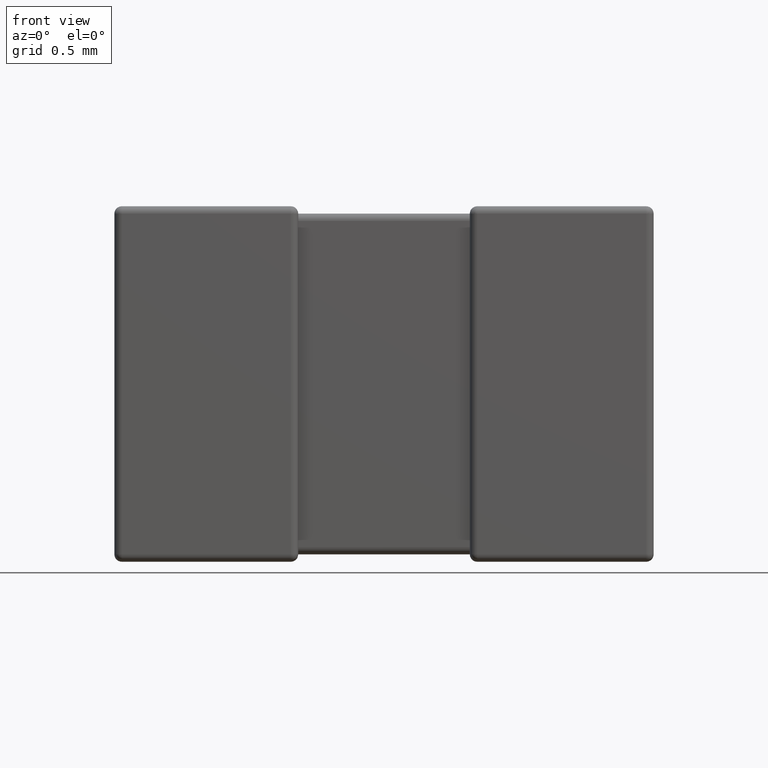
[diagram: clean part render]
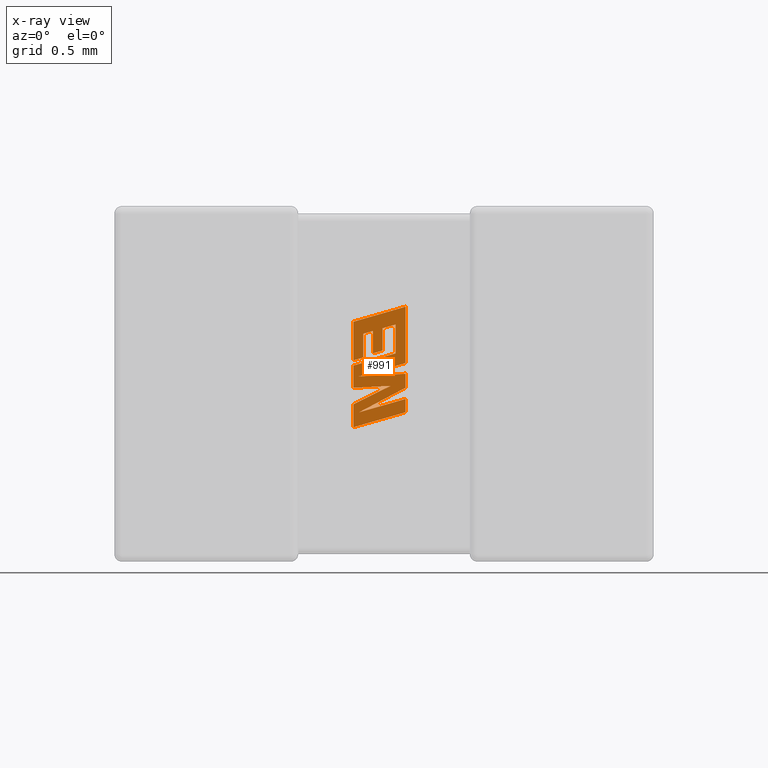
[diagram: x-ray — body ghosted, one internal face saturated and labeled with its STEP entity id]
A machine part, front view, then the same camera in x-ray: the body is ghosted and one INTERNAL B-rep face — a face not visible from any outside direction — is saturated and labeled: STEP entity #991.
In plain terms, the highlighted planar face has unit normal (0, -1, 0).
Its self-contained STEP definition (entity closure, byte-faithful):
#9 = DIRECTION ( 'NONE',  ( 0.000000000000000000, 0.000000000000000000, -1.000000000000000000 ) ) ;
#13 = DIRECTION ( 'NONE',  ( 0.000000000000000000, 0.000000000000000000, 1.000000000000000000 ) ) ;
#32 = CARTESIAN_POINT ( 'NONE',  ( 0.9973099854362785788, 1.369839999999999947, -0.8411322190964737322 ) ) ;
#51 = ORIENTED_EDGE ( 'NONE', *, *, #4365, .F. ) ;
#83 = LINE ( 'NONE', #2954, #1791 ) ;
#92 = CARTESIAN_POINT ( 'NONE',  ( 1.055057873940854041, 1.369839999999999947, -0.6002718793269788966 ) ) ;
#135 = VECTOR ( 'NONE', #973, 1000.000000000000000 ) ;
#177 = VECTOR ( 'NONE', #419, 1000.000000000000114 ) ;
#277 = DIRECTION ( 'NONE',  ( 0.000000000000000000, 0.000000000000000000, -1.000000000000000000 ) ) ;
#281 = VERTEX_POINT ( 'NONE', #996 ) ;
#312 = EDGE_CURVE ( 'NONE', #4492, #4380, #3766, .T. ) ;
#313 = VERTEX_POINT ( 'NONE', #4442 ) ;
#317 = CARTESIAN_POINT ( 'NONE',  ( 1.188000000000003498, 1.369839999999999947, -0.8405411030607993217 ) ) ;
#398 = CARTESIAN_POINT ( 'NONE',  ( 1.094464961500362321, 1.369839999999999947, -0.4975356530611448891 ) ) ;
#419 = DIRECTION ( 'NONE',  ( -0.9617234872620624708, 0.000000000000000000, -0.2740217765953967821 ) ) ;
#429 = CARTESIAN_POINT ( 'NONE',  ( 1.094464961500362321, 1.369839999999999947, -0.5890160448136516624 ) ) ;
#439 = CARTESIAN_POINT ( 'NONE',  ( 0.9982238819384064987, 1.369839999999999947, -0.6942755326709606489 ) ) ;
#465 = CARTESIAN_POINT ( 'NONE',  ( 0.9748339648551366254, 1.369839999999999947, -0.4714805285893743925 ) ) ;
#484 = VERTEX_POINT ( 'NONE', #1542 ) ;
#487 = EDGE_CURVE ( 'NONE', #281, #967, #83, .T. ) ;
#488 = DIRECTION ( 'NONE',  ( -0.8843386665637650301, 0.000000000000000000, -0.4668459304955136502 ) ) ;
#492 = VECTOR ( 'NONE', #1183, 1000.000000000000114 ) ;
#494 = CARTESIAN_POINT ( 'NONE',  ( 1.147445032506710483, 1.369839999999999947, -0.6006076228641760162 ) ) ;
#519 = AXIS2_PLACEMENT_3D ( 'NONE', #3305, #3971, #3651 ) ;
#551 = ORIENTED_EDGE ( 'NONE', *, *, #608, .F. ) ;
#565 = LINE ( 'NONE', #2324, #2459 ) ;
#575 = VERTEX_POINT ( 'NONE', #494 ) ;
#608 = EDGE_CURVE ( 'NONE', #2564, #3423, #4318, .T. ) ;
#690 = VECTOR ( 'NONE', #1037, 1000.000000000000000 ) ;
#699 = LINE ( 'NONE', #2049, #1253 ) ;
#716 = LINE ( 'NONE', #2394, #3722 ) ;
#734 = VERTEX_POINT ( 'NONE', #2796 ) ;
#765 = LINE ( 'NONE', #1719, #1055 ) ;
#775 = VECTOR ( 'NONE', #3718, 1000.000000000000227 ) ;
#805 = CARTESIAN_POINT ( 'NONE',  ( 0.9748339648551366254, 1.369839999999999947, -0.8083347367239003267 ) ) ;
#808 = ORIENTED_EDGE ( 'NONE', *, *, #3633, .F. ) ;
#809 = EDGE_CURVE ( 'NONE', #2777, #3607, #1012, .T. ) ;
#826 = LINE ( 'NONE', #3225, #3759 ) ;
#931 = EDGE_CURVE ( 'NONE', #313, #4492, #2110, .T. ) ;
#967 = VERTEX_POINT ( 'NONE', #1776 ) ;
#973 = DIRECTION ( 'NONE',  ( 0.000000000000000000, 0.000000000000000000, 1.000000000000000000 ) ) ;
#974 = VERTEX_POINT ( 'NONE', #4232 ) ;
#991 = ADVANCED_FACE ( 'NONE', ( #1459 ), #2852, .T. ) ;
#996 = CARTESIAN_POINT ( 'NONE',  ( 0.9748339648551366254, 1.369839999999999947, -0.7410023534756597918 ) ) ;
#1012 = LINE ( 'NONE', #2416, #3086 ) ;
#1037 = DIRECTION ( 'NONE',  ( 0.000000000000000000, 0.000000000000000000, -1.000000000000000000 ) ) ;
#1040 = CARTESIAN_POINT ( 'NONE',  ( 1.188000000000003498, 1.369839999999999947, -0.7863723184474802341 ) ) ;
#1055 = VECTOR ( 'NONE', #277, 1000.000000000000000 ) ;
#1065 = CARTESIAN_POINT ( 'NONE',  ( 1.015409025108017671, 1.369839999999999947, -0.5203156576566413394 ) ) ;
#1069 = VECTOR ( 'NONE', #4192, 1000.000000000000114 ) ;
#1104 = DIRECTION ( 'NONE',  ( -0.9601763114327565019, 0.000000000000000000, -0.2793947940878393488 ) ) ;
#1108 = LINE ( 'NONE', #429, #4330 ) ;
#1165 = LINE ( 'NONE', #2568, #3739 ) ;
#1175 = DIRECTION ( 'NONE',  ( 0.9610029908221285888, 0.000000000000000000, 0.2765379750249931101 ) ) ;
#1183 = DIRECTION ( 'NONE',  ( -0.9985542843760948362, 0.000000000000000000, -0.05375259206908060416 ) ) ;
#1253 = VECTOR ( 'NONE', #2830, 1000.000000000000000 ) ;
#1311 = EDGE_CURVE ( 'NONE', #2258, #484, #3582, .T. ) ;
#1313 = CARTESIAN_POINT ( 'NONE',  ( 1.015409025108017671, 1.369839999999999947, -0.6174362815830839457 ) ) ;
#1459 = FACE_OUTER_BOUND ( 'NONE', #1751, .T. ) ;
#1464 = CARTESIAN_POINT ( 'NONE',  ( 1.055057873940854041, 1.369839999999999947, -0.5087785245035225667 ) ) ;
#1495 = VECTOR ( 'NONE', #1538, 1000.000000000000000 ) ;
#1527 = EDGE_CURVE ( 'NONE', #2586, #3308, #1661, .T. ) ;
#1538 = DIRECTION ( 'NONE',  ( 0.000000000000000000, 0.000000000000000000, -1.000000000000000000 ) ) ;
#1542 = CARTESIAN_POINT ( 'NONE',  ( 1.094464961500362321, 1.369839999999999947, -0.5890160448136516624 ) ) ;
#1661 = LINE ( 'NONE', #1313, #3465 ) ;
#1671 = ORIENTED_EDGE ( 'NONE', *, *, #4027, .F. ) ;
#1704 = EDGE_CURVE ( 'NONE', #2418, #2562, #2323, .T. ) ;
#1719 = CARTESIAN_POINT ( 'NONE',  ( 1.188000000000003498, 1.369839999999999947, -0.6018423552029672496 ) ) ;
#1750 = LINE ( 'NONE', #1065, #690 ) ;
#1751 = EDGE_LOOP ( 'NONE', ( #2205, #4436, #2471, #3843, #4343, #3727, #1671, #3846, #3224, #551, #51, #3757, #4142, #3961, #3973, #808, #3008, #2628, #2703, #1823, #3432, #4406, #4457 ) ) ;
#1776 = CARTESIAN_POINT ( 'NONE',  ( 0.9748339648551366254, 1.369839999999999947, -0.6502224806510179533 ) ) ;
#1791 = VECTOR ( 'NONE', #2178, 1000.000000000000000 ) ;
#1823 = ORIENTED_EDGE ( 'NONE', *, *, #1903, .F. ) ;
#1845 = VERTEX_POINT ( 'NONE', #2679 ) ;
#1876 = CARTESIAN_POINT ( 'NONE',  ( 1.127122519210145501, 1.369839999999999947, -0.7328045973124587276 ) ) ;
#1903 = EDGE_CURVE ( 'NONE', #967, #575, #3267, .T. ) ;
#1968 = DIRECTION ( 'NONE',  ( -0.9619530280415479195, 0.000000000000000000, -0.2732148821746301914 ) ) ;
#1999 = VECTOR ( 'NONE', #2373, 1000.000000000000000 ) ;
#2035 = CARTESIAN_POINT ( 'NONE',  ( 1.188000000000003498, 1.369839999999999947, -0.8405411030607993217 ) ) ;
#2049 = CARTESIAN_POINT ( 'NONE',  ( 1.147445032506710483, 1.369839999999999947, -0.6006076228641760162 ) ) ;
#2110 = LINE ( 'NONE', #1040, #2446 ) ;
#2136 = LINE ( 'NONE', #1876, #492 ) ;
#2162 = EDGE_CURVE ( 'NONE', #974, #2258, #2185, .T. ) ;
#2165 = DIRECTION ( 'NONE',  ( 0.9984327301130250243, 0.000000000000000000, 0.05596501978067342647 ) ) ;
#2178 = DIRECTION ( 'NONE',  ( 0.000000000000000000, 0.000000000000000000, 1.000000000000000000 ) ) ;
#2185 = LINE ( 'NONE', #3571, #177 ) ;
#2199 = CARTESIAN_POINT ( 'NONE',  ( 0.9748339648551366254, 1.369839999999999947, -0.4714805285893743925 ) ) ;
#2205 = ORIENTED_EDGE ( 'NONE', *, *, #2499, .F. ) ;
#2209 = LINE ( 'NONE', #439, #4026 ) ;
#2258 = VERTEX_POINT ( 'NONE', #398 ) ;
#2323 = LINE ( 'NONE', #2617, #2456 ) ;
#2324 = CARTESIAN_POINT ( 'NONE',  ( 0.9973099854362785788, 1.369839999999999947, -0.8411322190964737322 ) ) ;
#2373 = DIRECTION ( 'NONE',  ( 0.000000000000000000, 0.000000000000000000, 1.000000000000000000 ) ) ;
#2394 = CARTESIAN_POINT ( 'NONE',  ( 0.9748339648551366254, 1.369839999999999947, -0.9018279099372659147 ) ) ;
#2416 = CARTESIAN_POINT ( 'NONE',  ( 1.055057873940854041, 1.369839999999999947, -0.5087785245035225667 ) ) ;
#2418 = VERTEX_POINT ( 'NONE', #4376 ) ;
#2421 = LINE ( 'NONE', #4156, #1999 ) ;
#2446 = VECTOR ( 'NONE', #3493, 1000.000000000000000 ) ;
#2456 = VECTOR ( 'NONE', #488, 1000.000000000000114 ) ;
#2459 = VECTOR ( 'NONE', #2680, 999.9999999999998863 ) ;
#2471 = ORIENTED_EDGE ( 'NONE', *, *, #931, .F. ) ;
#2499 = EDGE_CURVE ( 'NONE', #4380, #4017, #716, .T. ) ;
#2562 = VERTEX_POINT ( 'NONE', #32 ) ;
#2564 = VERTEX_POINT ( 'NONE', #465 ) ;
#2568 = CARTESIAN_POINT ( 'NONE',  ( 1.188000000000003498, 1.369839999999999947, -0.6397852638978243078 ) ) ;
#2569 = EDGE_CURVE ( 'NONE', #734, #281, #2136, .T. ) ;
#2586 = VERTEX_POINT ( 'NONE', #2879 ) ;
#2617 = CARTESIAN_POINT ( 'NONE',  ( 1.188000000000003498, 1.369839999999999947, -0.7404661952629607580 ) ) ;
#2628 = ORIENTED_EDGE ( 'NONE', *, *, #2162, .F. ) ;
#2679 = CARTESIAN_POINT ( 'NONE',  ( 1.188000000000003498, 1.369839999999999947, -0.6397852638978243078 ) ) ;
#2680 = DIRECTION ( 'NONE',  ( 0.9611542233438713501, 0.000000000000000000, 0.2760118818968482213 ) ) ;
#2703 = ORIENTED_EDGE ( 'NONE', *, *, #3501, .F. ) ;
#2708 = EDGE_CURVE ( 'NONE', #3423, #1845, #765, .T. ) ;
#2709 = CARTESIAN_POINT ( 'NONE',  ( 1.188000000000003498, 1.369839999999999947, -0.6836380366425458543 ) ) ;
#2761 = CARTESIAN_POINT ( 'NONE',  ( 0.9748339648551366254, 1.369839999999999947, -0.9018279099372659147 ) ) ;
#2777 = VERTEX_POINT ( 'NONE', #1464 ) ;
#2789 = VECTOR ( 'NONE', #9, 1000.000000000000000 ) ;
#2796 = CARTESIAN_POINT ( 'NONE',  ( 1.127122519210145501, 1.369839999999999947, -0.7328045973124587276 ) ) ;
#2814 = EDGE_CURVE ( 'NONE', #4017, #734, #826, .T. ) ;
#2830 = DIRECTION ( 'NONE',  ( 0.000000000000000000, 0.000000000000000000, 1.000000000000000000 ) ) ;
#2852 = PLANE ( 'NONE',  #519 ) ;
#2858 = CARTESIAN_POINT ( 'NONE',  ( 1.188000000000003498, 1.369839999999999947, -0.6836380366425458543 ) ) ;
#2872 = VERTEX_POINT ( 'NONE', #3640 ) ;
#2879 = CARTESIAN_POINT ( 'NONE',  ( 1.015409025108017671, 1.369839999999999947, -0.6174362815830839457 ) ) ;
#2917 = CARTESIAN_POINT ( 'NONE',  ( 1.015409025108017671, 1.369839999999999947, -0.5203156576566413394 ) ) ;
#2930 = CARTESIAN_POINT ( 'NONE',  ( 1.094464961500362321, 1.369839999999999947, -0.4975356530611448891 ) ) ;
#2942 = DIRECTION ( 'NONE',  ( 0.8958676361826827250, 0.000000000000000000, 0.4443210308329466063 ) ) ;
#2954 = CARTESIAN_POINT ( 'NONE',  ( 0.9748339648551366254, 1.369839999999999947, -0.7410023534756597918 ) ) ;
#3008 = ORIENTED_EDGE ( 'NONE', *, *, #1311, .F. ) ;
#3086 = VECTOR ( 'NONE', #1104, 1000.000000000000227 ) ;
#3116 = CARTESIAN_POINT ( 'NONE',  ( 0.9748339648551366254, 1.369839999999999947, -0.6289604516652645971 ) ) ;
#3151 = EDGE_CURVE ( 'NONE', #2562, #313, #565, .T. ) ;
#3224 = ORIENTED_EDGE ( 'NONE', *, *, #2708, .F. ) ;
#3225 = CARTESIAN_POINT ( 'NONE',  ( 0.9748339648551366254, 1.369839999999999947, -0.8083347367239003267 ) ) ;
#3267 = LINE ( 'NONE', #4305, #1069 ) ;
#3305 = CARTESIAN_POINT ( 'NONE',  ( -0.2425353559703316564, 1.369839999999999947, 0.003280988965688323017 ) ) ;
#3308 = VERTEX_POINT ( 'NONE', #3116 ) ;
#3397 = LINE ( 'NONE', #92, #135 ) ;
#3423 = VERTEX_POINT ( 'NONE', #3706 ) ;
#3432 = ORIENTED_EDGE ( 'NONE', *, *, #487, .F. ) ;
#3465 = VECTOR ( 'NONE', #1968, 1000.000000000000000 ) ;
#3493 = DIRECTION ( 'NONE',  ( 0.000000000000000000, 0.000000000000000000, -1.000000000000000000 ) ) ;
#3501 = EDGE_CURVE ( 'NONE', #575, #974, #699, .T. ) ;
#3571 = CARTESIAN_POINT ( 'NONE',  ( 1.147445032506710483, 1.369839999999999947, -0.4824401569298813475 ) ) ;
#3582 = LINE ( 'NONE', #2930, #1495 ) ;
#3607 = VERTEX_POINT ( 'NONE', #2917 ) ;
#3610 = VERTEX_POINT ( 'NONE', #4248 ) ;
#3633 = EDGE_CURVE ( 'NONE', #484, #2872, #1108, .T. ) ;
#3640 = CARTESIAN_POINT ( 'NONE',  ( 1.055057873940854041, 1.369839999999999947, -0.6002718793269788966 ) ) ;
#3651 = DIRECTION ( 'NONE',  ( 0.000000000000000000, 0.000000000000000000, -1.000000000000000000 ) ) ;
#3706 = CARTESIAN_POINT ( 'NONE',  ( 1.188000000000003498, 1.369839999999999947, -0.4101399247972486450 ) ) ;
#3718 = DIRECTION ( 'NONE',  ( -0.9610674221107078363, 0.000000000000000000, -0.2763139702539094134 ) ) ;
#3722 = VECTOR ( 'NONE', #13, 1000.000000000000000 ) ;
#3727 = ORIENTED_EDGE ( 'NONE', *, *, #4044, .F. ) ;
#3739 = VECTOR ( 'NONE', #3958, 1000.000000000000000 ) ;
#3757 = ORIENTED_EDGE ( 'NONE', *, *, #1527, .F. ) ;
#3759 = VECTOR ( 'NONE', #2942, 1000.000000000000114 ) ;
#3766 = LINE ( 'NONE', #2035, #775 ) ;
#3843 = ORIENTED_EDGE ( 'NONE', *, *, #3151, .F. ) ;
#3846 = ORIENTED_EDGE ( 'NONE', *, *, #4096, .F. ) ;
#3958 = DIRECTION ( 'NONE',  ( -0.9611638845408968512, 0.000000000000000000, -0.2759782365590690567 ) ) ;
#3961 = ORIENTED_EDGE ( 'NONE', *, *, #809, .F. ) ;
#3971 = DIRECTION ( 'NONE',  ( 0.000000000000000000, -1.000000000000000000, 0.000000000000000000 ) ) ;
#3973 = ORIENTED_EDGE ( 'NONE', *, *, #4052, .F. ) ;
#4017 = VERTEX_POINT ( 'NONE', #805 ) ;
#4026 = VECTOR ( 'NONE', #2165, 1000.000000000000227 ) ;
#4027 = EDGE_CURVE ( 'NONE', #3610, #4066, #2209, .T. ) ;
#4044 = EDGE_CURVE ( 'NONE', #4066, #2418, #4545, .T. ) ;
#4052 = EDGE_CURVE ( 'NONE', #2872, #2777, #3397, .T. ) ;
#4054 = VECTOR ( 'NONE', #1175, 1000.000000000000114 ) ;
#4066 = VERTEX_POINT ( 'NONE', #2709 ) ;
#4096 = EDGE_CURVE ( 'NONE', #1845, #3610, #1165, .T. ) ;
#4142 = ORIENTED_EDGE ( 'NONE', *, *, #4527, .F. ) ;
#4156 = CARTESIAN_POINT ( 'NONE',  ( 0.9748339648551366254, 1.369839999999999947, -0.6289604516652645971 ) ) ;
#4192 = DIRECTION ( 'NONE',  ( 0.9610853065513847993, 0.000000000000000000, 0.2762517575166369976 ) ) ;
#4232 = CARTESIAN_POINT ( 'NONE',  ( 1.147445032506710483, 1.369839999999999947, -0.4824401569298813475 ) ) ;
#4248 = CARTESIAN_POINT ( 'NONE',  ( 0.9982238819384064987, 1.369839999999999947, -0.6942755326709606489 ) ) ;
#4305 = CARTESIAN_POINT ( 'NONE',  ( 0.9748339648551366254, 1.369839999999999947, -0.6502224806510179533 ) ) ;
#4318 = LINE ( 'NONE', #2199, #4054 ) ;
#4330 = VECTOR ( 'NONE', #4336, 1000.000000000000227 ) ;
#4336 = DIRECTION ( 'NONE',  ( -0.9615454294334448981, 0.000000000000000000, -0.2746459304917006072 ) ) ;
#4343 = ORIENTED_EDGE ( 'NONE', *, *, #1704, .F. ) ;
#4365 = EDGE_CURVE ( 'NONE', #3308, #2564, #2421, .T. ) ;
#4376 = CARTESIAN_POINT ( 'NONE',  ( 1.188000000000003498, 1.369839999999999947, -0.7404661952629607580 ) ) ;
#4380 = VERTEX_POINT ( 'NONE', #2761 ) ;
#4406 = ORIENTED_EDGE ( 'NONE', *, *, #2569, .F. ) ;
#4436 = ORIENTED_EDGE ( 'NONE', *, *, #312, .F. ) ;
#4442 = CARTESIAN_POINT ( 'NONE',  ( 1.188000000000003498, 1.369839999999999947, -0.7863723184474802341 ) ) ;
#4457 = ORIENTED_EDGE ( 'NONE', *, *, #2814, .F. ) ;
#4492 = VERTEX_POINT ( 'NONE', #317 ) ;
#4527 = EDGE_CURVE ( 'NONE', #3607, #2586, #1750, .T. ) ;
#4545 = LINE ( 'NONE', #2858, #2789 ) ;